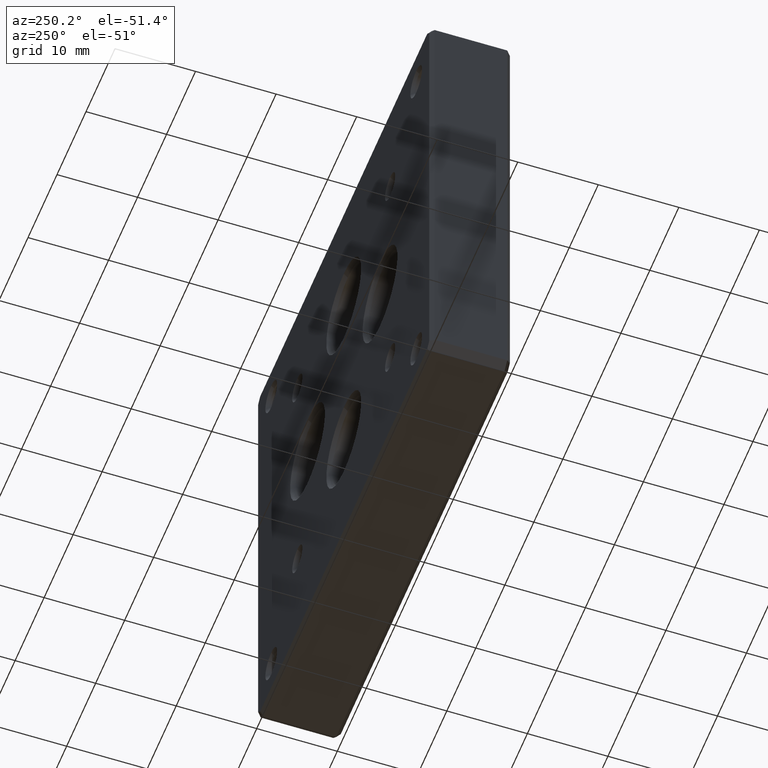
[diagram: clean part render]
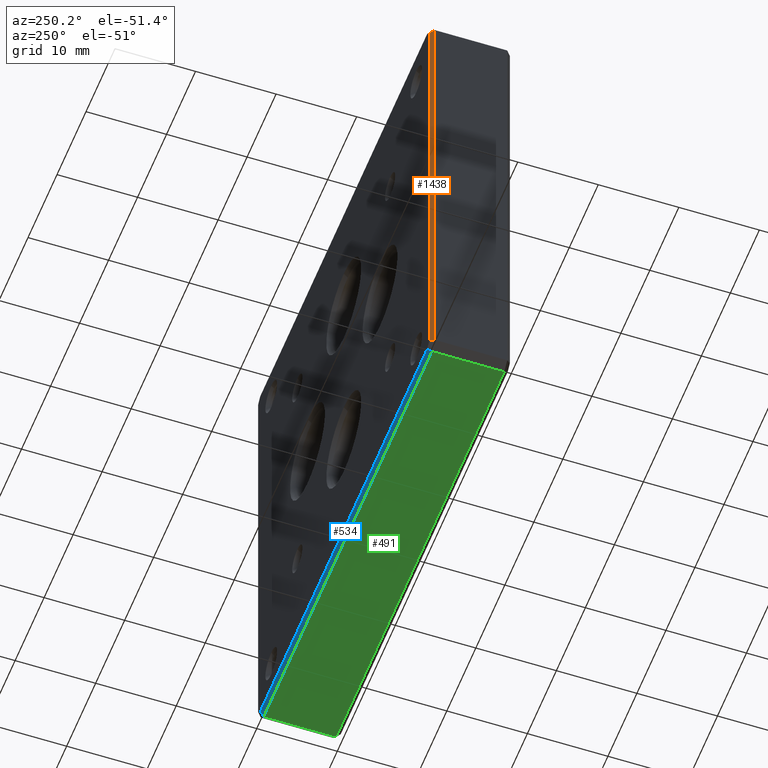
[diagram: same view with three faces highlighted in distinct colors, each labeled with its STEP entity id]
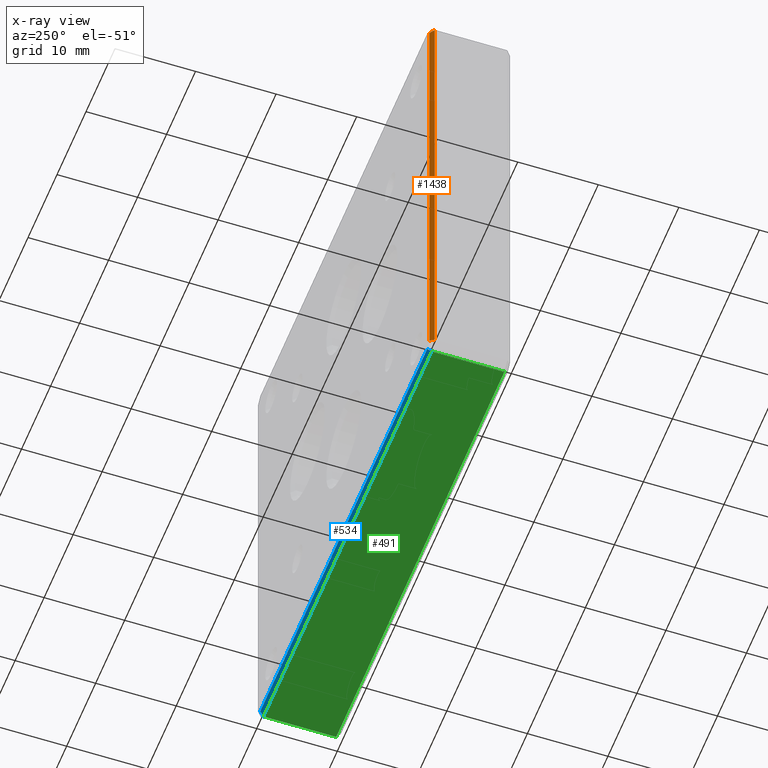
[diagram: x-ray of the same camera — body ghosted, the three highlighted faces saturated]
A machine part, auxiliary view with three faces highlighted in distinct colors.
The next image is the same camera in x-ray (body ghosted, the three faces saturated) — at least one of them is partly hidden behind the body in this view.
Their STEP definitions:

[orange] entity #1438 — the highlighted planar face has unit normal (-0.7071, 0.7071, 0).
#2 = EDGE_LOOP ( 'NONE', ( #53, #500, #1466, #33 ) ) ;
#24 = DIRECTION ( 'NONE',  ( -0.7071067811865524577, 0.7071067811865425767, 8.177564888978053335E-17 ) ) ;
#33 = ORIENTED_EDGE ( 'NONE', *, *, #494, .F. ) ;
#53 = ORIENTED_EDGE ( 'NONE', *, *, #1138, .F. ) ;
#126 = VERTEX_POINT ( 'NONE', #1143 ) ;
#173 = CARTESIAN_POINT ( 'NONE',  ( -30.00000000000000355, 9.500000000000000000, -29.00000000000000000 ) ) ;
#276 = DIRECTION ( 'NONE',  ( 1.156482317317871478E-16, 0.000000000000000000, 1.000000000000000000 ) ) ;
#283 = LINE ( 'NONE', #1256, #298 ) ;
#298 = VECTOR ( 'NONE', #276, 1000.000000000000000 ) ;
#317 = DIRECTION ( 'NONE',  ( 0.6785983445458426688, 0.6785983445458522167, 0.2810846377148182307 ) ) ;
#347 = CARTESIAN_POINT ( 'NONE',  ( -29.40462821508473468, 10.09537178491527065, 28.75338893203381119 ) ) ;
#401 = VECTOR ( 'NONE', #317, 1000.000000000000227 ) ;
#418 = EDGE_CURVE ( 'NONE', #1332, #938, #847, .T. ) ;
#443 = CARTESIAN_POINT ( 'NONE',  ( -29.50000000000000355, 10.00000000000000000, 28.79289321881345032 ) ) ;
#459 = DIRECTION ( 'NONE',  ( -1.156482317317871478E-16, 0.000000000000000000, -1.000000000000000000 ) ) ;
#494 = EDGE_CURVE ( 'NONE', #126, #1546, #283, .T. ) ;
#500 = ORIENTED_EDGE ( 'NONE', *, *, #418, .F. ) ;
#527 = PLANE ( 'NONE',  #558 ) ;
#558 = AXIS2_PLACEMENT_3D ( 'NONE', #1243, #24, #1115 ) ;
#706 = CARTESIAN_POINT ( 'NONE',  ( -30.00000000000000355, 9.500000000000000000, -28.29289321881346453 ) ) ;
#732 = VECTOR ( 'NONE', #1444, 1000.000000000000114 ) ;
#761 = FACE_OUTER_BOUND ( 'NONE', #2, .T. ) ;
#842 = CARTESIAN_POINT ( 'NONE',  ( -29.99999999999999645, 9.499999999999992895, 29.00000000000001421 ) ) ;
#847 = LINE ( 'NONE', #706, #1487 ) ;
#905 = CARTESIAN_POINT ( 'NONE',  ( -29.40462821508473823, 10.09537178491527420, -28.75338893203382185 ) ) ;
#937 = LINE ( 'NONE', #905, #401 ) ;
#938 = VERTEX_POINT ( 'NONE', #173 ) ;
#975 = LINE ( 'NONE', #347, #732 ) ;
#1115 = DIRECTION ( 'NONE',  ( -1.156482317317871478E-16, 0.000000000000000000, -1.000000000000000000 ) ) ;
#1138 = EDGE_CURVE ( 'NONE', #938, #126, #937, .T. ) ;
#1143 = CARTESIAN_POINT ( 'NONE',  ( -29.50000000000000711, 10.00000000000000000, -28.79289321881345742 ) ) ;
#1243 = CARTESIAN_POINT ( 'NONE',  ( -29.50000000000000711, 10.00000000000000000, 3.411622836087721539E-15 ) ) ;
#1256 = CARTESIAN_POINT ( 'NONE',  ( -29.50000000000000355, 10.00000000000000000, 28.29289321881345742 ) ) ;
#1259 = EDGE_CURVE ( 'NONE', #1546, #1332, #975, .T. ) ;
#1332 = VERTEX_POINT ( 'NONE', #842 ) ;
#1438 = ADVANCED_FACE ( 'NONE', ( #761 ), #527, .T. ) ;
#1444 = DIRECTION ( 'NONE',  ( -0.6785983445458398933, -0.6785983445458493302, 0.2810846377148318864 ) ) ;
#1466 = ORIENTED_EDGE ( 'NONE', *, *, #1259, .F. ) ;
#1487 = VECTOR ( 'NONE', #459, 1000.000000000000000 ) ;
#1546 = VERTEX_POINT ( 'NONE', #443 ) ;

[blue] entity #534 — the highlighted planar face has unit normal (0, 0.7071, -0.7071).
#39 = EDGE_CURVE ( 'NONE', #238, #1342, #435, .T. ) ;
#45 = EDGE_LOOP ( 'NONE', ( #870, #1070, #1528, #1098 ) ) ;
#97 = LINE ( 'NONE', #785, #145 ) ;
#142 = DIRECTION ( 'NONE',  ( -1.000000000000000000, 0.000000000000000000, 0.000000000000000000 ) ) ;
#145 = VECTOR ( 'NONE', #1271, 1000.000000000000000 ) ;
#189 = CARTESIAN_POINT ( 'NONE',  ( 28.75338893203380763, 10.09537178491527065, -29.40462821508472047 ) ) ;
#238 = VERTEX_POINT ( 'NONE', #835 ) ;
#396 = VECTOR ( 'NONE', #142, 1000.000000000000000 ) ;
#417 = DIRECTION ( 'NONE',  ( -0.2810846377148247255, 0.6785983445458507735, 0.6785983445458413366 ) ) ;
#423 = PLANE ( 'NONE',  #1235 ) ;
#435 = LINE ( 'NONE', #189, #682 ) ;
#534 = ADVANCED_FACE ( 'NONE', ( #1247 ), #423, .T. ) ;
#618 = LINE ( 'NONE', #961, #874 ) ;
#682 = VECTOR ( 'NONE', #417, 1000.000000000000114 ) ;
#720 = EDGE_CURVE ( 'NONE', #1073, #1403, #618, .T. ) ;
#730 = LINE ( 'NONE', #1555, #396 ) ;
#785 = CARTESIAN_POINT ( 'NONE',  ( 28.29289321881343611, 9.499999999999985789, -29.99999999999999645 ) ) ;
#787 = DIRECTION ( 'NONE',  ( 1.000000000000000000, 0.000000000000000000, 0.000000000000000000 ) ) ;
#807 = EDGE_CURVE ( 'NONE', #1342, #1073, #730, .T. ) ;
#835 = CARTESIAN_POINT ( 'NONE',  ( 29.00000000000000711, 9.499999999999978684, -29.99999999999999645 ) ) ;
#870 = ORIENTED_EDGE ( 'NONE', *, *, #39, .F. ) ;
#874 = VECTOR ( 'NONE', #1439, 1000.000000000000114 ) ;
#961 = CARTESIAN_POINT ( 'NONE',  ( -28.75338893203384316, 10.09537178491526888, -29.40462821508472047 ) ) ;
#1008 = DIRECTION ( 'NONE',  ( 0.000000000000000000, 0.7071067811865425767, -0.7071067811865524577 ) ) ;
#1060 = EDGE_CURVE ( 'NONE', #1403, #238, #97, .T. ) ;
#1070 = ORIENTED_EDGE ( 'NONE', *, *, #1060, .F. ) ;
#1073 = VERTEX_POINT ( 'NONE', #1512 ) ;
#1098 = ORIENTED_EDGE ( 'NONE', *, *, #807, .F. ) ;
#1235 = AXIS2_PLACEMENT_3D ( 'NONE', #1392, #1008, #787 ) ;
#1247 = FACE_OUTER_BOUND ( 'NONE', #45, .T. ) ;
#1271 = DIRECTION ( 'NONE',  ( 1.000000000000000000, 0.000000000000000000, 0.000000000000000000 ) ) ;
#1331 = CARTESIAN_POINT ( 'NONE',  ( 28.79289321881344321, 10.00000000000000000, -29.49999999999998934 ) ) ;
#1342 = VERTEX_POINT ( 'NONE', #1331 ) ;
#1392 = CARTESIAN_POINT ( 'NONE',  ( 0.000000000000000000, 10.00000000000000000, -29.49999999999998934 ) ) ;
#1403 = VERTEX_POINT ( 'NONE', #1476 ) ;
#1439 = DIRECTION ( 'NONE',  ( -0.2810846377148182307, -0.6785983445458521057, -0.6785983445458426688 ) ) ;
#1476 = CARTESIAN_POINT ( 'NONE',  ( -29.00000000000000711, 9.500000000000000000, -29.99999999999999645 ) ) ;
#1512 = CARTESIAN_POINT ( 'NONE',  ( -28.79289321881347874, 10.00000000000000000, -29.49999999999998934 ) ) ;
#1528 = ORIENTED_EDGE ( 'NONE', *, *, #720, .F. ) ;
#1555 = CARTESIAN_POINT ( 'NONE',  ( -28.29289321881347163, 10.00000000000000000, -29.49999999999998934 ) ) ;

[green] entity #491 — the highlighted planar face has unit normal (0, 0, 1).
#46 = DIRECTION ( 'NONE',  ( 0.000000000000000000, 0.000000000000000000, 1.000000000000000000 ) ) ;
#48 = VECTOR ( 'NONE', #1529, 1000.000000000000000 ) ;
#97 = LINE ( 'NONE', #785, #145 ) ;
#109 = ORIENTED_EDGE ( 'NONE', *, *, #1060, .T. ) ;
#132 = VERTEX_POINT ( 'NONE', #542 ) ;
#145 = VECTOR ( 'NONE', #1271, 1000.000000000000000 ) ;
#151 = EDGE_CURVE ( 'NONE', #1440, #1403, #936, .T. ) ;
#190 = DIRECTION ( 'NONE',  ( 0.000000000000000000, -1.000000000000000000, 0.000000000000000000 ) ) ;
#199 = AXIS2_PLACEMENT_3D ( 'NONE', #540, #46, #1371 ) ;
#207 = CARTESIAN_POINT ( 'NONE',  ( -29.00000000000000711, 10.00000000000000000, -29.99999999999999645 ) ) ;
#238 = VERTEX_POINT ( 'NONE', #835 ) ;
#249 = VECTOR ( 'NONE', #1043, 1000.000000000000000 ) ;
#318 = EDGE_CURVE ( 'NONE', #132, #1440, #820, .T. ) ;
#402 = CARTESIAN_POINT ( 'NONE',  ( -29.00000000000000711, 0.5000000000000073275, -29.99999999999999645 ) ) ;
#491 = ADVANCED_FACE ( 'NONE', ( #545 ), #1001, .F. ) ;
#540 = CARTESIAN_POINT ( 'NONE',  ( -30.00000000000000355, 10.00000000000000000, -29.99999999999999645 ) ) ;
#542 = CARTESIAN_POINT ( 'NONE',  ( 29.00000000000000711, 0.5000000000000213163, -29.99999999999999645 ) ) ;
#545 = FACE_OUTER_BOUND ( 'NONE', #857, .T. ) ;
#640 = ORIENTED_EDGE ( 'NONE', *, *, #151, .T. ) ;
#785 = CARTESIAN_POINT ( 'NONE',  ( 28.29289321881343611, 9.499999999999985789, -29.99999999999999645 ) ) ;
#820 = LINE ( 'NONE', #1432, #48 ) ;
#835 = CARTESIAN_POINT ( 'NONE',  ( 29.00000000000000711, 9.499999999999978684, -29.99999999999999645 ) ) ;
#857 = EDGE_LOOP ( 'NONE', ( #1525, #1063, #640, #109 ) ) ;
#936 = LINE ( 'NONE', #207, #249 ) ;
#1001 = PLANE ( 'NONE',  #199 ) ;
#1043 = DIRECTION ( 'NONE',  ( -0.000000000000000000, 1.000000000000000000, 0.000000000000000000 ) ) ;
#1048 = EDGE_CURVE ( 'NONE', #238, #132, #1410, .T. ) ;
#1060 = EDGE_CURVE ( 'NONE', #1403, #238, #97, .T. ) ;
#1063 = ORIENTED_EDGE ( 'NONE', *, *, #318, .T. ) ;
#1271 = DIRECTION ( 'NONE',  ( 1.000000000000000000, 0.000000000000000000, 0.000000000000000000 ) ) ;
#1278 = CARTESIAN_POINT ( 'NONE',  ( 29.00000000000000711, 10.00000000000000000, -29.99999999999999645 ) ) ;
#1371 = DIRECTION ( 'NONE',  ( 1.000000000000000000, 0.000000000000000000, -0.000000000000000000 ) ) ;
#1403 = VERTEX_POINT ( 'NONE', #1476 ) ;
#1410 = LINE ( 'NONE', #1278, #1433 ) ;
#1432 = CARTESIAN_POINT ( 'NONE',  ( -30.00000000000000355, 0.4999999999999935052, -29.99999999999999645 ) ) ;
#1433 = VECTOR ( 'NONE', #190, 1000.000000000000000 ) ;
#1440 = VERTEX_POINT ( 'NONE', #402 ) ;
#1476 = CARTESIAN_POINT ( 'NONE',  ( -29.00000000000000711, 9.500000000000000000, -29.99999999999999645 ) ) ;
#1525 = ORIENTED_EDGE ( 'NONE', *, *, #1048, .T. ) ;
#1529 = DIRECTION ( 'NONE',  ( -1.000000000000000000, 0.000000000000000000, 0.000000000000000000 ) ) ;